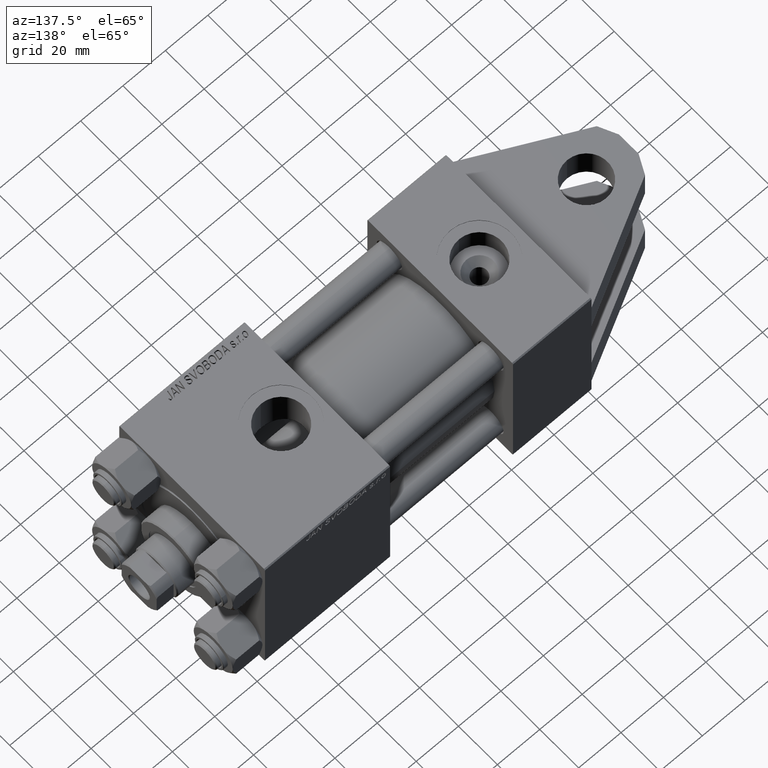
[diagram: clean part render]
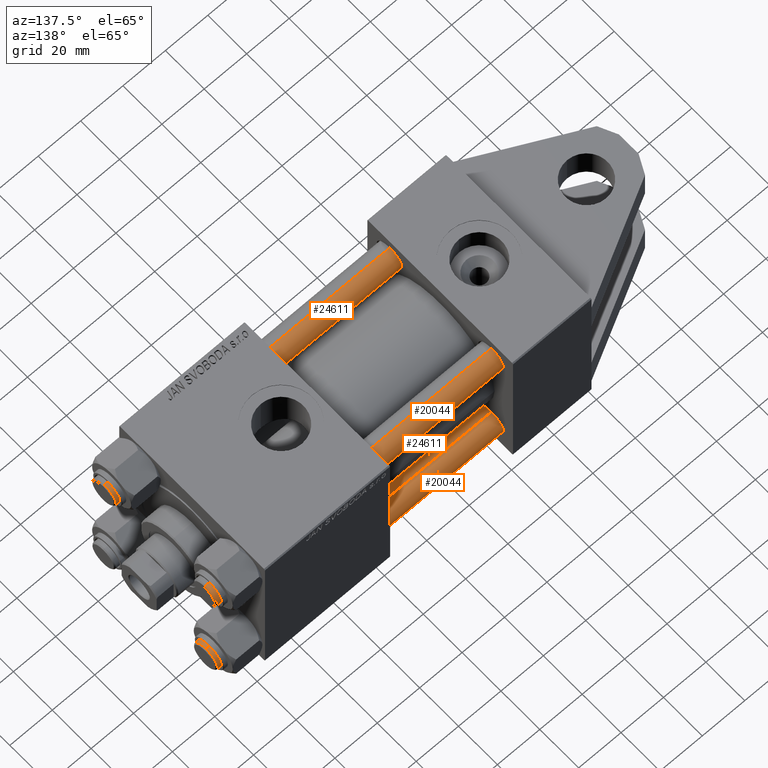
[diagram: same view with one multi-face feature highlighted, each face labeled with its STEP entity id]
A machine part, auxiliary view. The highlighted faces form ONE feature: a constant-radius fillet chain: 4 tangent blend faces with common blend radius 6 mm. The faces share edges in the B-rep.
Their STEP definitions:
[1] entity #20044 (Cylinder):
#215 = VERTEX_POINT ( 'NONE', #27668 ) ;
#1997 = AXIS2_PLACEMENT_3D ( 'NONE', #30281, #45622, #11196 ) ;
#4029 = DIRECTION ( 'NONE',  ( -0.000000000000000000, -0.000000000000000000, -1.000000000000000000 ) ) ;
#5022 = VERTEX_POINT ( 'NONE', #37911 ) ;
#6924 = EDGE_CURVE ( 'NONE', #46012, #5022, #41361, .T. ) ;
#7470 = ORIENTED_EDGE ( 'NONE', *, *, #34571, .F. ) ;
#8122 = ORIENTED_EDGE ( 'NONE', *, *, #14365, .T. ) ;
#11196 = DIRECTION ( 'NONE',  ( 1.000000000000000000, 0.000000000000000000, 0.000000000000000000 ) ) ;
#11603 = EDGE_CURVE ( 'NONE', #33123, #46012, #32470, .T. ) ;
#14365 = EDGE_CURVE ( 'NONE', #215, #33123, #33629, .T. ) ;
#15886 = CARTESIAN_POINT ( 'NONE',  ( -6.000000000000000888, 0.000000000000000000, 148.0000000000000000 ) ) ;
#17030 = CARTESIAN_POINT ( 'NONE',  ( 6.000000000000000888, 7.347880794884120722E-16, 147.5000000000000000 ) ) ;
#20044 = ADVANCED_FACE ( 'NONE', ( #41998 ), #38720, .T. ) ;
#21452 = EDGE_LOOP ( 'NONE', ( #8122, #40015, #41207, #7470 ) ) ;
#22892 = CARTESIAN_POINT ( 'NONE',  ( 0.000000000000000000, 0.000000000000000000, 148.0000000000000000 ) ) ;
#23138 = DIRECTION ( 'NONE',  ( -1.000000000000000000, 0.000000000000000000, 0.000000000000000000 ) ) ;
#24028 = AXIS2_PLACEMENT_3D ( 'NONE', #35926, #28376, #43730 ) ;
#27668 = CARTESIAN_POINT ( 'NONE',  ( -6.000000000000000888, 0.000000000000000000, 147.5000000000000000 ) ) ;
#28376 = DIRECTION ( 'NONE',  ( 0.000000000000000000, 0.000000000000000000, -1.000000000000000000 ) ) ;
#30281 = CARTESIAN_POINT ( 'NONE',  ( 0.000000000000000000, 0.000000000000000000, 0.5000000000000281997 ) ) ;
#32470 = LINE ( 'NONE', #47804, #42391 ) ;
#33123 = VERTEX_POINT ( 'NONE', #17030 ) ;
#33629 = CIRCLE ( 'NONE', #24028, 6.000000000000000888 ) ;
#34571 = EDGE_CURVE ( 'NONE', #215, #5022, #46039, .T. ) ;
#35926 = CARTESIAN_POINT ( 'NONE',  ( 0.000000000000000000, 0.000000000000000000, 147.5000000000000000 ) ) ;
#37911 = CARTESIAN_POINT ( 'NONE',  ( -6.000000000000000888, 0.000000000000000000, 0.5000000000000281997 ) ) ;
#38457 = DIRECTION ( 'NONE',  ( -0.000000000000000000, -0.000000000000000000, -1.000000000000000000 ) ) ;
#38720 = CYLINDRICAL_SURFACE ( 'NONE', #43404, 6.000000000000000888 ) ;
#40015 = ORIENTED_EDGE ( 'NONE', *, *, #11603, .T. ) ;
#40871 = CARTESIAN_POINT ( 'NONE',  ( 6.000000000000000888, 7.347880794884120722E-16, 0.5000000000000281997 ) ) ;
#41207 = ORIENTED_EDGE ( 'NONE', *, *, #6924, .T. ) ;
#41361 = CIRCLE ( 'NONE', #1997, 6.000000000000000888 ) ;
#41998 = FACE_OUTER_BOUND ( 'NONE', #21452, .T. ) ;
#42391 = VECTOR ( 'NONE', #38457, 1000.000000000000000 ) ;
#43404 = AXIS2_PLACEMENT_3D ( 'NONE', #22892, #4029, #23138 ) ;
#43680 = VECTOR ( 'NONE', #46544, 1000.000000000000000 ) ;
#43730 = DIRECTION ( 'NONE',  ( 1.000000000000000000, 0.000000000000000000, 0.000000000000000000 ) ) ;
#45622 = DIRECTION ( 'NONE',  ( -0.000000000000000000, -0.000000000000000000, 1.000000000000000000 ) ) ;
#46012 = VERTEX_POINT ( 'NONE', #40871 ) ;
#46039 = LINE ( 'NONE', #15886, #43680 ) ;
#46544 = DIRECTION ( 'NONE',  ( -0.000000000000000000, -0.000000000000000000, -1.000000000000000000 ) ) ;
#47804 = CARTESIAN_POINT ( 'NONE',  ( 6.000000000000000888, 7.347880794884120722E-16, 148.0000000000000000 ) ) ;
[2] entity #24611 (Cylinder):
#215 = VERTEX_POINT ( 'NONE', #27668 ) ;
#1104 = CARTESIAN_POINT ( 'NONE',  ( 0.000000000000000000, 0.000000000000000000, 148.0000000000000000 ) ) ;
#3308 = ORIENTED_EDGE ( 'NONE', *, *, #34571, .T. ) ;
#5022 = VERTEX_POINT ( 'NONE', #37911 ) ;
#8651 = CYLINDRICAL_SURFACE ( 'NONE', #12183, 6.000000000000000888 ) ;
#10689 = AXIS2_PLACEMENT_3D ( 'NONE', #37360, #37109, #48676 ) ;
#11603 = EDGE_CURVE ( 'NONE', #33123, #46012, #32470, .T. ) ;
#12183 = AXIS2_PLACEMENT_3D ( 'NONE', #1104, #13172, #43590 ) ;
#13172 = DIRECTION ( 'NONE',  ( -0.000000000000000000, -0.000000000000000000, -1.000000000000000000 ) ) ;
#13713 = EDGE_LOOP ( 'NONE', ( #31342, #38539, #3308, #32080 ) ) ;
#13904 = DIRECTION ( 'NONE',  ( 1.000000000000000000, 0.000000000000000000, 0.000000000000000000 ) ) ;
#14888 = CARTESIAN_POINT ( 'NONE',  ( 0.000000000000000000, 0.000000000000000000, 147.5000000000000000 ) ) ;
#15886 = CARTESIAN_POINT ( 'NONE',  ( -6.000000000000000888, 0.000000000000000000, 148.0000000000000000 ) ) ;
#17030 = CARTESIAN_POINT ( 'NONE',  ( 6.000000000000000888, 7.347880794884120722E-16, 147.5000000000000000 ) ) ;
#18155 = AXIS2_PLACEMENT_3D ( 'NONE', #14888, #22178, #13904 ) ;
#21189 = FACE_OUTER_BOUND ( 'NONE', #13713, .T. ) ;
#22178 = DIRECTION ( 'NONE',  ( 0.000000000000000000, 0.000000000000000000, -1.000000000000000000 ) ) ;
#24611 = ADVANCED_FACE ( 'NONE', ( #21189 ), #8651, .T. ) ;
#27668 = CARTESIAN_POINT ( 'NONE',  ( -6.000000000000000888, 0.000000000000000000, 147.5000000000000000 ) ) ;
#31342 = ORIENTED_EDGE ( 'NONE', *, *, #11603, .F. ) ;
#32080 = ORIENTED_EDGE ( 'NONE', *, *, #33261, .T. ) ;
#32470 = LINE ( 'NONE', #47804, #42391 ) ;
#33123 = VERTEX_POINT ( 'NONE', #17030 ) ;
#33261 = EDGE_CURVE ( 'NONE', #5022, #46012, #37207, .T. ) ;
#34571 = EDGE_CURVE ( 'NONE', #215, #5022, #46039, .T. ) ;
#37109 = DIRECTION ( 'NONE',  ( -0.000000000000000000, -0.000000000000000000, 1.000000000000000000 ) ) ;
#37207 = CIRCLE ( 'NONE', #10689, 6.000000000000000888 ) ;
#37360 = CARTESIAN_POINT ( 'NONE',  ( 0.000000000000000000, 0.000000000000000000, 0.5000000000000281997 ) ) ;
#37911 = CARTESIAN_POINT ( 'NONE',  ( -6.000000000000000888, 0.000000000000000000, 0.5000000000000281997 ) ) ;
#38457 = DIRECTION ( 'NONE',  ( -0.000000000000000000, -0.000000000000000000, -1.000000000000000000 ) ) ;
#38539 = ORIENTED_EDGE ( 'NONE', *, *, #39509, .T. ) ;
#39509 = EDGE_CURVE ( 'NONE', #33123, #215, #42233, .T. ) ;
#40871 = CARTESIAN_POINT ( 'NONE',  ( 6.000000000000000888, 7.347880794884120722E-16, 0.5000000000000281997 ) ) ;
#42233 = CIRCLE ( 'NONE', #18155, 6.000000000000000888 ) ;
#42391 = VECTOR ( 'NONE', #38457, 1000.000000000000000 ) ;
#43590 = DIRECTION ( 'NONE',  ( -1.000000000000000000, 0.000000000000000000, 0.000000000000000000 ) ) ;
#43680 = VECTOR ( 'NONE', #46544, 1000.000000000000000 ) ;
#46012 = VERTEX_POINT ( 'NONE', #40871 ) ;
#46039 = LINE ( 'NONE', #15886, #43680 ) ;
#46544 = DIRECTION ( 'NONE',  ( -0.000000000000000000, -0.000000000000000000, -1.000000000000000000 ) ) ;
#47804 = CARTESIAN_POINT ( 'NONE',  ( 6.000000000000000888, 7.347880794884120722E-16, 148.0000000000000000 ) ) ;
#48676 = DIRECTION ( 'NONE',  ( 1.000000000000000000, 0.000000000000000000, 0.000000000000000000 ) ) ;
[3] entity #20044 (Cylinder):
#215 = VERTEX_POINT ( 'NONE', #27668 ) ;
#1997 = AXIS2_PLACEMENT_3D ( 'NONE', #30281, #45622, #11196 ) ;
#4029 = DIRECTION ( 'NONE',  ( -0.000000000000000000, -0.000000000000000000, -1.000000000000000000 ) ) ;
#5022 = VERTEX_POINT ( 'NONE', #37911 ) ;
#6924 = EDGE_CURVE ( 'NONE', #46012, #5022, #41361, .T. ) ;
#7470 = ORIENTED_EDGE ( 'NONE', *, *, #34571, .F. ) ;
#8122 = ORIENTED_EDGE ( 'NONE', *, *, #14365, .T. ) ;
#11196 = DIRECTION ( 'NONE',  ( 1.000000000000000000, 0.000000000000000000, 0.000000000000000000 ) ) ;
#11603 = EDGE_CURVE ( 'NONE', #33123, #46012, #32470, .T. ) ;
#14365 = EDGE_CURVE ( 'NONE', #215, #33123, #33629, .T. ) ;
#15886 = CARTESIAN_POINT ( 'NONE',  ( -6.000000000000000888, 0.000000000000000000, 148.0000000000000000 ) ) ;
#17030 = CARTESIAN_POINT ( 'NONE',  ( 6.000000000000000888, 7.347880794884120722E-16, 147.5000000000000000 ) ) ;
#20044 = ADVANCED_FACE ( 'NONE', ( #41998 ), #38720, .T. ) ;
#21452 = EDGE_LOOP ( 'NONE', ( #8122, #40015, #41207, #7470 ) ) ;
#22892 = CARTESIAN_POINT ( 'NONE',  ( 0.000000000000000000, 0.000000000000000000, 148.0000000000000000 ) ) ;
#23138 = DIRECTION ( 'NONE',  ( -1.000000000000000000, 0.000000000000000000, 0.000000000000000000 ) ) ;
#24028 = AXIS2_PLACEMENT_3D ( 'NONE', #35926, #28376, #43730 ) ;
#27668 = CARTESIAN_POINT ( 'NONE',  ( -6.000000000000000888, 0.000000000000000000, 147.5000000000000000 ) ) ;
#28376 = DIRECTION ( 'NONE',  ( 0.000000000000000000, 0.000000000000000000, -1.000000000000000000 ) ) ;
#30281 = CARTESIAN_POINT ( 'NONE',  ( 0.000000000000000000, 0.000000000000000000, 0.5000000000000281997 ) ) ;
#32470 = LINE ( 'NONE', #47804, #42391 ) ;
#33123 = VERTEX_POINT ( 'NONE', #17030 ) ;
#33629 = CIRCLE ( 'NONE', #24028, 6.000000000000000888 ) ;
#34571 = EDGE_CURVE ( 'NONE', #215, #5022, #46039, .T. ) ;
#35926 = CARTESIAN_POINT ( 'NONE',  ( 0.000000000000000000, 0.000000000000000000, 147.5000000000000000 ) ) ;
#37911 = CARTESIAN_POINT ( 'NONE',  ( -6.000000000000000888, 0.000000000000000000, 0.5000000000000281997 ) ) ;
#38457 = DIRECTION ( 'NONE',  ( -0.000000000000000000, -0.000000000000000000, -1.000000000000000000 ) ) ;
#38720 = CYLINDRICAL_SURFACE ( 'NONE', #43404, 6.000000000000000888 ) ;
#40015 = ORIENTED_EDGE ( 'NONE', *, *, #11603, .T. ) ;
#40871 = CARTESIAN_POINT ( 'NONE',  ( 6.000000000000000888, 7.347880794884120722E-16, 0.5000000000000281997 ) ) ;
#41207 = ORIENTED_EDGE ( 'NONE', *, *, #6924, .T. ) ;
#41361 = CIRCLE ( 'NONE', #1997, 6.000000000000000888 ) ;
#41998 = FACE_OUTER_BOUND ( 'NONE', #21452, .T. ) ;
#42391 = VECTOR ( 'NONE', #38457, 1000.000000000000000 ) ;
#43404 = AXIS2_PLACEMENT_3D ( 'NONE', #22892, #4029, #23138 ) ;
#43680 = VECTOR ( 'NONE', #46544, 1000.000000000000000 ) ;
#43730 = DIRECTION ( 'NONE',  ( 1.000000000000000000, 0.000000000000000000, 0.000000000000000000 ) ) ;
#45622 = DIRECTION ( 'NONE',  ( -0.000000000000000000, -0.000000000000000000, 1.000000000000000000 ) ) ;
#46012 = VERTEX_POINT ( 'NONE', #40871 ) ;
#46039 = LINE ( 'NONE', #15886, #43680 ) ;
#46544 = DIRECTION ( 'NONE',  ( -0.000000000000000000, -0.000000000000000000, -1.000000000000000000 ) ) ;
#47804 = CARTESIAN_POINT ( 'NONE',  ( 6.000000000000000888, 7.347880794884120722E-16, 148.0000000000000000 ) ) ;
[4] entity #24611 (Cylinder):
#215 = VERTEX_POINT ( 'NONE', #27668 ) ;
#1104 = CARTESIAN_POINT ( 'NONE',  ( 0.000000000000000000, 0.000000000000000000, 148.0000000000000000 ) ) ;
#3308 = ORIENTED_EDGE ( 'NONE', *, *, #34571, .T. ) ;
#5022 = VERTEX_POINT ( 'NONE', #37911 ) ;
#8651 = CYLINDRICAL_SURFACE ( 'NONE', #12183, 6.000000000000000888 ) ;
#10689 = AXIS2_PLACEMENT_3D ( 'NONE', #37360, #37109, #48676 ) ;
#11603 = EDGE_CURVE ( 'NONE', #33123, #46012, #32470, .T. ) ;
#12183 = AXIS2_PLACEMENT_3D ( 'NONE', #1104, #13172, #43590 ) ;
#13172 = DIRECTION ( 'NONE',  ( -0.000000000000000000, -0.000000000000000000, -1.000000000000000000 ) ) ;
#13713 = EDGE_LOOP ( 'NONE', ( #31342, #38539, #3308, #32080 ) ) ;
#13904 = DIRECTION ( 'NONE',  ( 1.000000000000000000, 0.000000000000000000, 0.000000000000000000 ) ) ;
#14888 = CARTESIAN_POINT ( 'NONE',  ( 0.000000000000000000, 0.000000000000000000, 147.5000000000000000 ) ) ;
#15886 = CARTESIAN_POINT ( 'NONE',  ( -6.000000000000000888, 0.000000000000000000, 148.0000000000000000 ) ) ;
#17030 = CARTESIAN_POINT ( 'NONE',  ( 6.000000000000000888, 7.347880794884120722E-16, 147.5000000000000000 ) ) ;
#18155 = AXIS2_PLACEMENT_3D ( 'NONE', #14888, #22178, #13904 ) ;
#21189 = FACE_OUTER_BOUND ( 'NONE', #13713, .T. ) ;
#22178 = DIRECTION ( 'NONE',  ( 0.000000000000000000, 0.000000000000000000, -1.000000000000000000 ) ) ;
#24611 = ADVANCED_FACE ( 'NONE', ( #21189 ), #8651, .T. ) ;
#27668 = CARTESIAN_POINT ( 'NONE',  ( -6.000000000000000888, 0.000000000000000000, 147.5000000000000000 ) ) ;
#31342 = ORIENTED_EDGE ( 'NONE', *, *, #11603, .F. ) ;
#32080 = ORIENTED_EDGE ( 'NONE', *, *, #33261, .T. ) ;
#32470 = LINE ( 'NONE', #47804, #42391 ) ;
#33123 = VERTEX_POINT ( 'NONE', #17030 ) ;
#33261 = EDGE_CURVE ( 'NONE', #5022, #46012, #37207, .T. ) ;
#34571 = EDGE_CURVE ( 'NONE', #215, #5022, #46039, .T. ) ;
#37109 = DIRECTION ( 'NONE',  ( -0.000000000000000000, -0.000000000000000000, 1.000000000000000000 ) ) ;
#37207 = CIRCLE ( 'NONE', #10689, 6.000000000000000888 ) ;
#37360 = CARTESIAN_POINT ( 'NONE',  ( 0.000000000000000000, 0.000000000000000000, 0.5000000000000281997 ) ) ;
#37911 = CARTESIAN_POINT ( 'NONE',  ( -6.000000000000000888, 0.000000000000000000, 0.5000000000000281997 ) ) ;
#38457 = DIRECTION ( 'NONE',  ( -0.000000000000000000, -0.000000000000000000, -1.000000000000000000 ) ) ;
#38539 = ORIENTED_EDGE ( 'NONE', *, *, #39509, .T. ) ;
#39509 = EDGE_CURVE ( 'NONE', #33123, #215, #42233, .T. ) ;
#40871 = CARTESIAN_POINT ( 'NONE',  ( 6.000000000000000888, 7.347880794884120722E-16, 0.5000000000000281997 ) ) ;
#42233 = CIRCLE ( 'NONE', #18155, 6.000000000000000888 ) ;
#42391 = VECTOR ( 'NONE', #38457, 1000.000000000000000 ) ;
#43590 = DIRECTION ( 'NONE',  ( -1.000000000000000000, 0.000000000000000000, 0.000000000000000000 ) ) ;
#43680 = VECTOR ( 'NONE', #46544, 1000.000000000000000 ) ;
#46012 = VERTEX_POINT ( 'NONE', #40871 ) ;
#46039 = LINE ( 'NONE', #15886, #43680 ) ;
#46544 = DIRECTION ( 'NONE',  ( -0.000000000000000000, -0.000000000000000000, -1.000000000000000000 ) ) ;
#47804 = CARTESIAN_POINT ( 'NONE',  ( 6.000000000000000888, 7.347880794884120722E-16, 148.0000000000000000 ) ) ;
#48676 = DIRECTION ( 'NONE',  ( 1.000000000000000000, 0.000000000000000000, 0.000000000000000000 ) ) ;